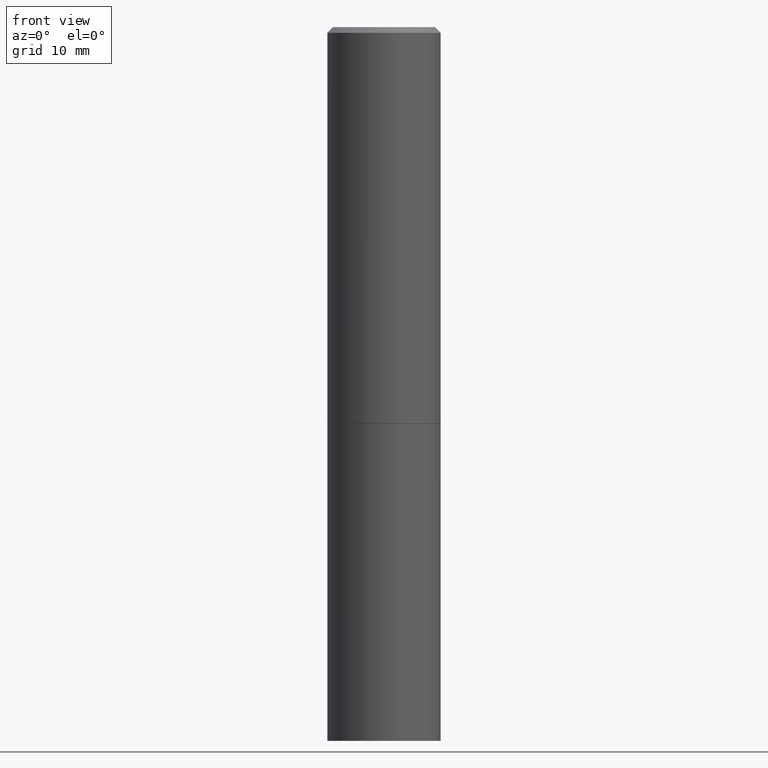
[diagram: clean part render]
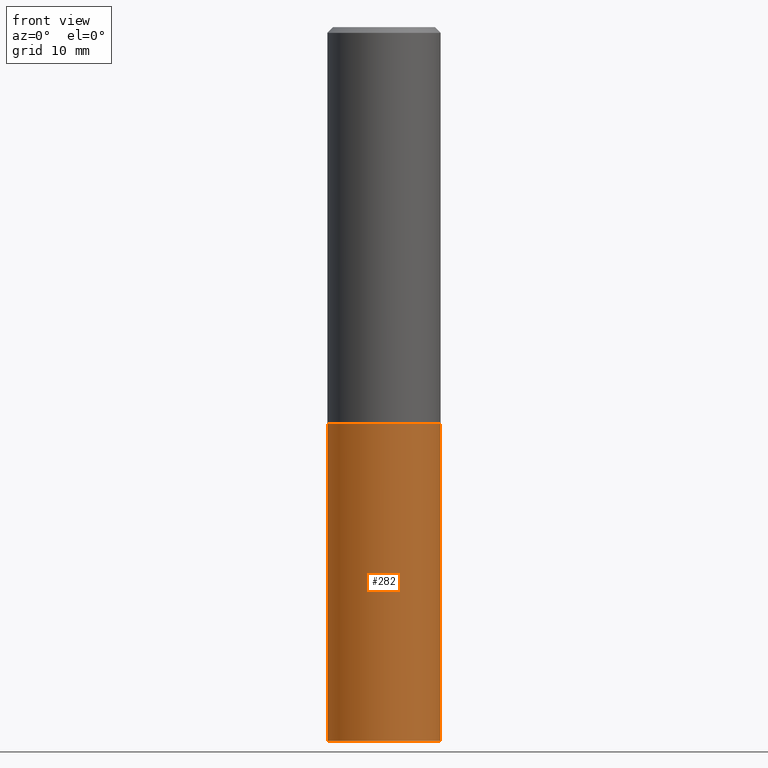
[diagram: same view with one face highlighted and labeled with its STEP entity id]
A machine part, front view. The second image highlights one B-rep face of the part: STEP entity #282.
In plain terms, the highlighted cylindrical surface (partial cylindrical patch) has radius 5 mm, axis along (-0, 0, 1).
Its self-contained STEP definition (entity closure, byte-faithful):
#4 = EDGE_LOOP ( 'NONE', ( #119, #172, #158, #97 ) ) ;
#23 = CARTESIAN_POINT ( 'NONE',  ( 0.1968500000000000250, -6.185508339894512836E-15, -1.377900000000000125 ) ) ;
#30 = VERTEX_POINT ( 'NONE', #35 ) ;
#35 = CARTESIAN_POINT ( 'NONE',  ( -0.1968500000000000250, -5.336713275418556283E-15, -1.377900000000000125 ) ) ;
#51 = EDGE_CURVE ( 'NONE', #228, #190, #207, .T. ) ;
#52 = DIRECTION ( 'NONE',  ( -2.445468806185136597E-29, 3.491481338843145583E-15, 1.000000000000000000 ) ) ;
#56 = CARTESIAN_POINT ( 'NONE',  ( 3.369611468042499724E-29, -4.810912136791970439E-15, -1.377900000000000125 ) ) ;
#58 = DIRECTION ( 'NONE',  ( 1.000000000000000000, -6.982962677686267499E-15, 0.000000000000000000 ) ) ;
#80 = DIRECTION ( 'NONE',  ( 1.000000000000000000, -6.982962677686267499E-15, 0.000000000000000000 ) ) ;
#82 = AXIS2_PLACEMENT_3D ( 'NONE', #250, #151, #58 ) ;
#84 = CARTESIAN_POINT ( 'NONE',  ( 0.000000000000000000, 0.000000000000000000, 0.000000000000000000 ) ) ;
#97 = ORIENTED_EDGE ( 'NONE', *, *, #267, .F. ) ;
#105 = DIRECTION ( 'NONE',  ( 1.000000000000000000, -6.982962677686265922E-15, 4.876176775795935793E-29 ) ) ;
#119 = ORIENTED_EDGE ( 'NONE', *, *, #344, .F. ) ;
#123 = AXIS2_PLACEMENT_3D ( 'NONE', #56, #52, #80 ) ;
#125 = CARTESIAN_POINT ( 'NONE',  ( -0.1968500000000000250, -5.336713275418556283E-15, -2.480300000000000171 ) ) ;
#128 = EDGE_CURVE ( 'NONE', #190, #236, #279, .T. ) ;
#138 = LINE ( 'NONE', #164, #162 ) ;
#151 = DIRECTION ( 'NONE',  ( -2.445468806185136597E-29, 3.491481338843145583E-15, 1.000000000000000000 ) ) ;
#158 = ORIENTED_EDGE ( 'NONE', *, *, #128, .T. ) ;
#162 = VECTOR ( 'NONE', #293, 39.37007874015748143 ) ;
#164 = CARTESIAN_POINT ( 'NONE',  ( -0.1968500000000000250, 1.398703375343757393E-15, -9.682923725166783677E-30 ) ) ;
#172 = ORIENTED_EDGE ( 'NONE', *, *, #51, .T. ) ;
#189 = FACE_OUTER_BOUND ( 'NONE', #4, .T. ) ;
#190 = VERTEX_POINT ( 'NONE', #346 ) ;
#207 = CIRCLE ( 'NONE', #82, 0.1968500000000000250 ) ;
#217 = DIRECTION ( 'NONE',  ( -2.445468806185136877E-29, 3.491481338843145188E-15, 1.000000000000000000 ) ) ;
#219 = AXIS2_PLACEMENT_3D ( 'NONE', #84, #356, #105 ) ;
#228 = VERTEX_POINT ( 'NONE', #125 ) ;
#229 = VECTOR ( 'NONE', #217, 39.37007874015748143 ) ;
#236 = VERTEX_POINT ( 'NONE', #23 ) ;
#250 = CARTESIAN_POINT ( 'NONE',  ( 6.065496279980994755E-29, -8.659921164732655335E-15, -2.480300000000000171 ) ) ;
#256 = CARTESIAN_POINT ( 'NONE',  ( 0.1968500000000000250, -1.374596203102541608E-15, 9.598753983154300858E-30 ) ) ;
#267 = EDGE_CURVE ( 'NONE', #30, #236, #269, .T. ) ;
#269 = CIRCLE ( 'NONE', #123, 0.1968500000000000250 ) ;
#279 = LINE ( 'NONE', #256, #229 ) ;
#282 = ADVANCED_FACE ( 'NONE', ( #189 ), #291, .T. ) ;
#291 = CYLINDRICAL_SURFACE ( 'NONE', #219, 0.1968500000000000250 ) ;
#293 = DIRECTION ( 'NONE',  ( -2.445468806185136877E-29, 3.491481338843145188E-15, 1.000000000000000000 ) ) ;
#344 = EDGE_CURVE ( 'NONE', #228, #30, #138, .T. ) ;
#346 = CARTESIAN_POINT ( 'NONE',  ( 0.1968500000000000250, -1.003451736783519694E-14, -2.480300000000000171 ) ) ;
#356 = DIRECTION ( 'NONE',  ( -2.445468806185136597E-29, 3.491481338843145583E-15, 1.000000000000000000 ) ) ;